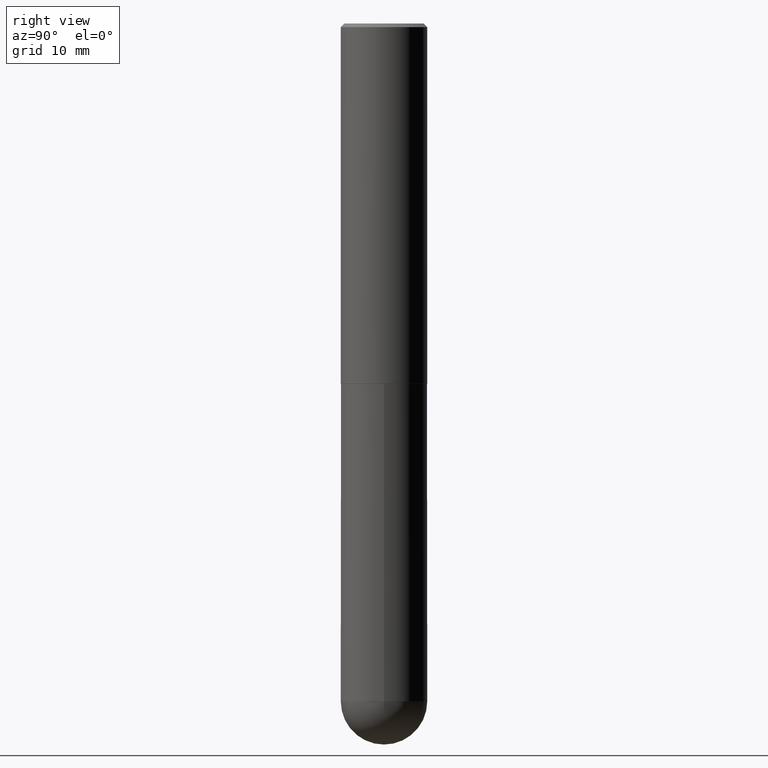
[diagram: clean part render]
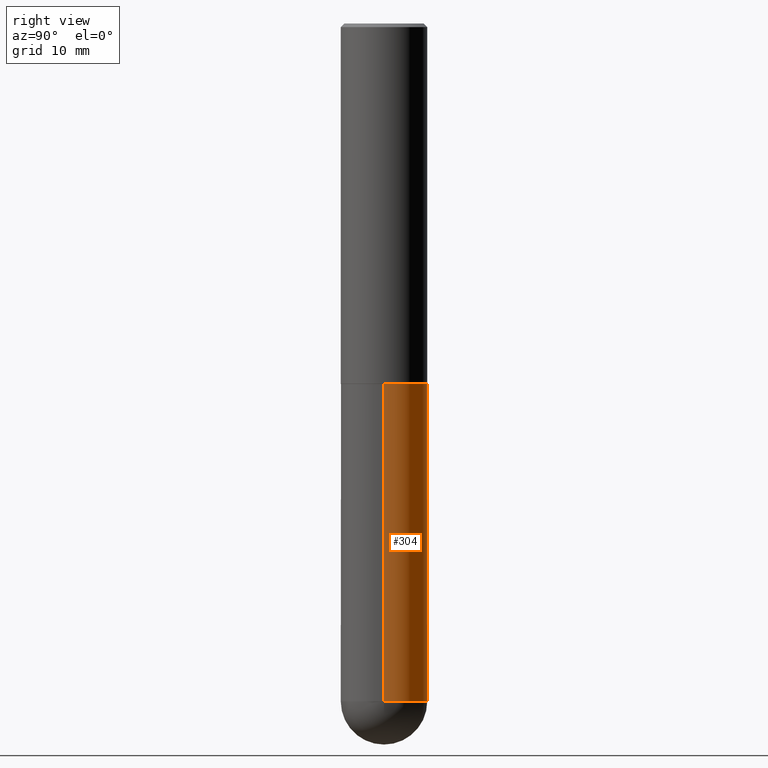
[diagram: same view with one face highlighted and labeled with its STEP entity id]
A machine part, right view. The second image highlights one B-rep face of the part: STEP entity #304.
In plain terms, the highlighted cylindrical surface (partial cylindrical patch) has radius 5.9995 mm, axis along (-0, 0, 1).
Its self-contained STEP definition (entity closure, byte-faithful):
#2 = VECTOR ( 'NONE', #267, 39.37007874015748143 ) ;
#12 = CIRCLE ( 'NONE', #158, 0.2361999999999999933 ) ;
#15 = DIRECTION ( 'NONE',  ( -2.445468806185136597E-29, 3.491481338843145583E-15, 1.000000000000000000 ) ) ;
#16 = CARTESIAN_POINT ( 'NONE',  ( -0.2361999999999999933, -8.218825635286365458E-15, -1.968500000000000139 ) ) ;
#18 = DIRECTION ( 'NONE',  ( -2.445468806185136597E-29, 3.491481338843145583E-15, 1.000000000000000000 ) ) ;
#19 = CIRCLE ( 'NONE', #302, 0.2361999999999999933 ) ;
#27 = EDGE_CURVE ( 'NONE', #352, #40, #19, .T. ) ;
#32 = ORIENTED_EDGE ( 'NONE', *, *, #195, .F. ) ;
#40 = VERTEX_POINT ( 'NONE', #16 ) ;
#42 = EDGE_CURVE ( 'NONE', #317, #40, #138, .T. ) ;
#55 = CARTESIAN_POINT ( 'NONE',  ( 9.050190957929953666E-29, -1.292127413879071357E-14, -3.700800000000000090 ) ) ;
#75 = CARTESIAN_POINT ( 'NONE',  ( -0.2361999999999999933, 1.678301941865356591E-15, -1.161852468318208757E-29 ) ) ;
#84 = ORIENTED_EDGE ( 'NONE', *, *, #343, .T. ) ;
#85 = LINE ( 'NONE', #212, #369 ) ;
#87 = FACE_OUTER_BOUND ( 'NONE', #96, .T. ) ;
#88 = CARTESIAN_POINT ( 'NONE',  ( -0.2361999999999999933, -8.218825635286368613E-15, -3.700800000000000090 ) ) ;
#96 = EDGE_LOOP ( 'NONE', ( #278, #313, #388, #32, #84 ) ) ;
#99 = DIRECTION ( 'NONE',  ( 1.000000000000000000, -6.982962677686265133E-15, 0.000000000000000000 ) ) ;
#138 = LINE ( 'NONE', #75, #2 ) ;
#149 = CIRCLE ( 'NONE', #387, 0.2361999999999999933 ) ;
#158 = AXIS2_PLACEMENT_3D ( 'NONE', #400, #248, #99 ) ;
#168 = DIRECTION ( 'NONE',  ( 1.000000000000000000, -6.982962677686269077E-15, 0.000000000000000000 ) ) ;
#177 = DIRECTION ( 'NONE',  ( -2.445468806185136877E-29, 3.491481338843145188E-15, 1.000000000000000000 ) ) ;
#180 = CARTESIAN_POINT ( 'NONE',  ( 0.000000000000000000, 0.000000000000000000, 0.000000000000000000 ) ) ;
#183 = DIRECTION ( 'NONE',  ( 1.000000000000000000, -6.982962677686265133E-15, 0.000000000000000000 ) ) ;
#195 = EDGE_CURVE ( 'NONE', #408, #352, #85, .T. ) ;
#197 = CARTESIAN_POINT ( 'NONE',  ( 0.2361999999999999933, -8.522356799982228232E-15, -1.968500000000000139 ) ) ;
#212 = CARTESIAN_POINT ( 'NONE',  ( 0.2361999999999999933, -1.649375784469496131E-15, 1.151752954443000088E-29 ) ) ;
#214 = CYLINDRICAL_SURFACE ( 'NONE', #255, 0.2361999999999999933 ) ;
#218 = CARTESIAN_POINT ( 'NONE',  ( 1.649375784469585666E-15, 0.2361999999999869759, -3.700800000000000978 ) ) ;
#248 = DIRECTION ( 'NONE',  ( -2.445468806185136597E-29, 3.491481338843145583E-15, 1.000000000000000000 ) ) ;
#250 = VERTEX_POINT ( 'NONE', #218 ) ;
#255 = AXIS2_PLACEMENT_3D ( 'NONE', #180, #401, #378 ) ;
#267 = DIRECTION ( 'NONE',  ( -2.445468806185136877E-29, 3.491481338843145188E-15, 1.000000000000000000 ) ) ;
#278 = ORIENTED_EDGE ( 'NONE', *, *, #328, .T. ) ;
#302 = AXIS2_PLACEMENT_3D ( 'NONE', #392, #15, #168 ) ;
#304 = ADVANCED_FACE ( 'NONE', ( #87 ), #214, .T. ) ;
#313 = ORIENTED_EDGE ( 'NONE', *, *, #42, .T. ) ;
#317 = VERTEX_POINT ( 'NONE', #88 ) ;
#328 = EDGE_CURVE ( 'NONE', #250, #317, #149, .T. ) ;
#343 = EDGE_CURVE ( 'NONE', #408, #250, #12, .T. ) ;
#352 = VERTEX_POINT ( 'NONE', #197 ) ;
#369 = VECTOR ( 'NONE', #177, 39.37007874015748143 ) ;
#378 = DIRECTION ( 'NONE',  ( 1.000000000000000000, -6.982962677686266711E-15, 4.876176775795936353E-29 ) ) ;
#387 = AXIS2_PLACEMENT_3D ( 'NONE', #55, #18, #183 ) ;
#388 = ORIENTED_EDGE ( 'NONE', *, *, #27, .F. ) ;
#392 = CARTESIAN_POINT ( 'NONE',  ( 4.813905344975441835E-29, -6.872981015512731707E-15, -1.968500000000000139 ) ) ;
#400 = CARTESIAN_POINT ( 'NONE',  ( 9.050190957929953666E-29, -1.292127413879071357E-14, -3.700800000000000090 ) ) ;
#401 = DIRECTION ( 'NONE',  ( -2.445468806185136597E-29, 3.491481338843145583E-15, 1.000000000000000000 ) ) ;
#407 = CARTESIAN_POINT ( 'NONE',  ( 0.2361999999999999933, -1.154650336162122153E-14, -3.700800000000000090 ) ) ;
#408 = VERTEX_POINT ( 'NONE', #407 ) ;